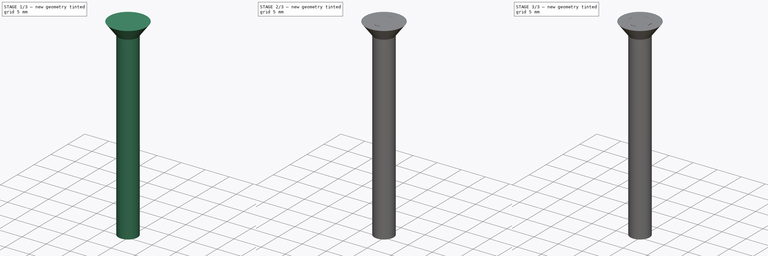
[diagram: build sequence overview — one tinted view per stage of 3, left to right]
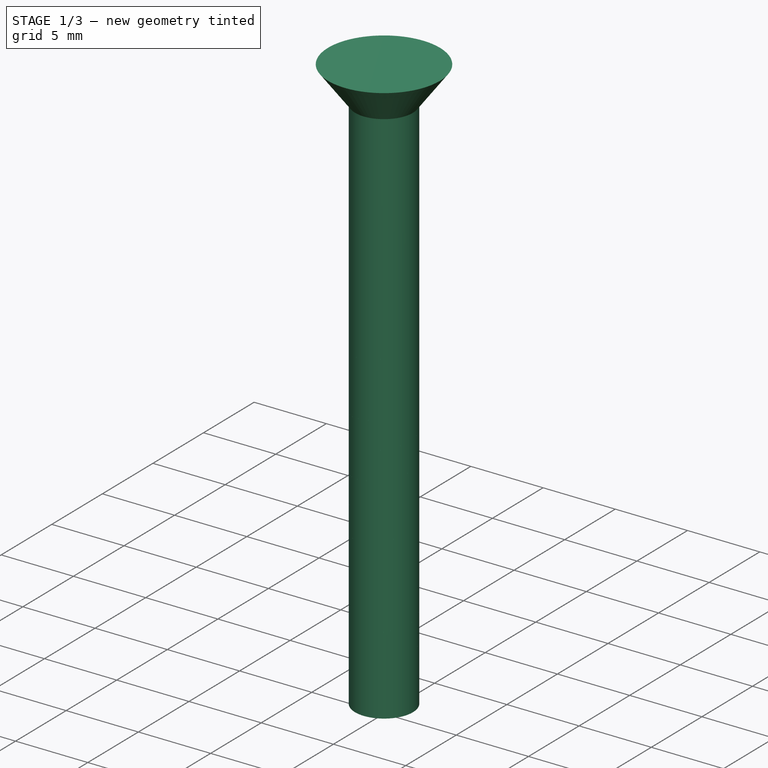
[diagram: stage 1 of 3 — iso view after this stage's code; geometry added in this stage tinted green]
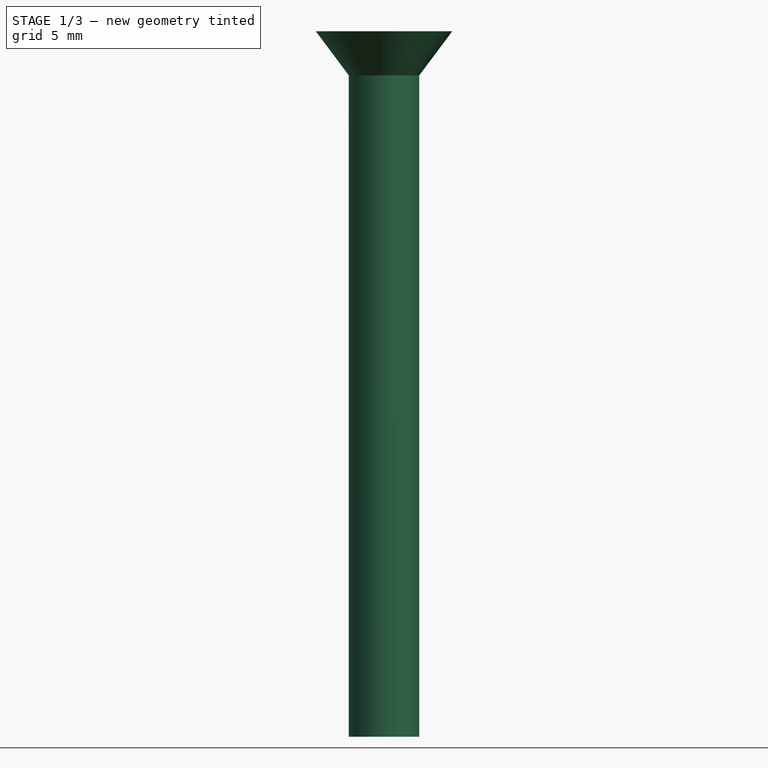
[diagram: stage 1 of 3 — front view after this stage's code; geometry added in this stage tinted green]
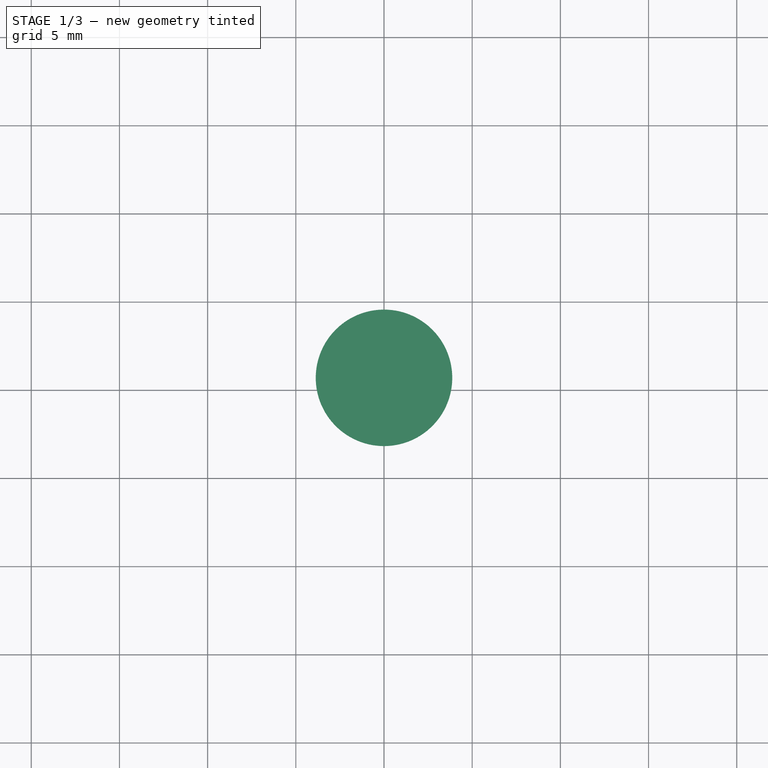
[diagram: stage 1 of 3 — top view after this stage's code; geometry added in this stage tinted green]
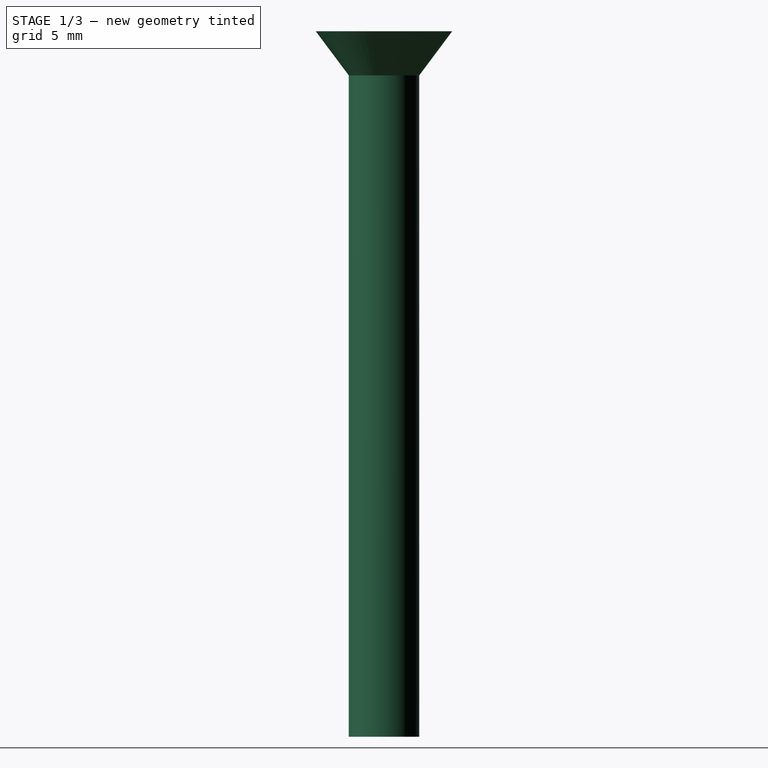
[diagram: stage 1 of 3 — right view after this stage's code; geometry added in this stage tinted green]
FCSTD DOCUMENT  (FreeCAD 1.1R20260325 (Git shallow))
Label: Screw_4_x_40_mm
License: All rights reserved
LicenseURL: http://en.wikipedia.org/wiki/All_rights_reserved
objects: Sketcher::SketchObject×5, PartDesign::AdditiveHelix×2, PartDesign::Pocket×2, App::LinkGroup×2, Spreadsheet::Sheet×1, PartDesign::Revolution×1, PartDesign::PolarPattern×1, PartDesign::SubtractiveHelix×1, PartDesign::Body×1, Part::Cylinder×1, App::Point×1
note: 32 computed .brp shape members not serialized (recipe doc carries the construction recipe); baked Part::Feature solids carry a one-line shape summary decoded from their .brp

FEATURE [Spreadsheet::Sheet] Spreadsheet  label="settings"
  cells = A1='Settings (set here):; A2='Screw diameter; B2(sdia)=4; A3='Screw height; B3(sheight)=40; A4='Head diameter; B4(hdia)=7.74; A5='No thread height; B5(threadfree)=9; A6='Bit size; B6(bitsize)=4.26; A7='Adjust if needed:; A8='Thread jump; B8(tjump)=1.9; A9='Head height 1; B9(hheight1)=0.5; A10='Head height 2; B10(hheight2)=2.5; A11='Bit pocket thickness; B11(bitthick)=1; A12='Calculated (not change):; A13='Screw radius; B13(sr)==sdia / 2; A14='Head radius; B14(hr)==hdia / 2; A15='Screw core diameter; B15(coredia)==sdia - 1; A16='Screw core radius; B16(corer)==coredia / 2; A17='Spike size; B17(spikesize)==tjump * 2; A18='Thread core height (no spike, no head); B18(tcoreheight)==sheight - spikesize - hheight1 - hheight2; A19='Thread height; B19(theight)==tcoreheight - threadfree
FEATURE [Sketcher::SketchObject] Sketch  label="Core, Pattern"
  ArcFitTolerance = 0
  AttachmentSupport = -> [XZ_Plane]
  ExternalTypes = [0]
  FullyConstrained = true
  MakeInternals = false
  MapMode = 5
  Placement = pos=(0,0,0) rot=(1,0,0;1.5708rad)
  _ExternalGeoVersion = 0
  expr: Constraints[10] = Spreadsheet.corer
  expr: Constraints[11] = 2 * Spreadsheet.tjump
  expr: Constraints[12] = Spreadsheet.sheight
  expr: Constraints[13] = Spreadsheet.hheight1
  expr: Constraints[14] = Spreadsheet.hheight2
  expr: Constraints[15] = Spreadsheet.hr
  expr: Constraints[16] = Spreadsheet.hheight1
  sketch-geometry (6):
    g0: LineSegment StartX=0 StartY=0 StartZ=0 EndX=1.5 EndY=3.8 EndZ=0
    g1: LineSegment StartX=1.5 StartY=3.8 StartZ=0 EndX=1.5 EndY=37 EndZ=0
    g2: LineSegment StartX=1.5 StartY=37 StartZ=0 EndX=2 EndY=37.5 EndZ=0
    g3: LineSegment StartX=2 StartY=37.5 StartZ=0 EndX=3.87 EndY=40 EndZ=0
    g4: LineSegment StartX=3.87 StartY=40 StartZ=0 EndX=0 EndY=40 EndZ=0
    g5: LineSegment StartX=0 StartY=40 StartZ=0 EndX=0 EndY=0 EndZ=0
  constraints (17):
    c: Coincident(g-1,g0)
    c: Coincident(g0,g1)
    c: Vertical(g1)
    c: Coincident(g1,g2)
    c: Coincident(g2,g3)
    c: Coincident(g3,g4)
    c: PointOnObject(g4,g-2)
    c: Horizontal(g4)
    c: Coincident(g4,g5)
    c: Coincident(g5,g0)
    c: DistanceX(g0,g0) = 1.5
    c: DistanceY(g0,g0) = 3.8
    c: DistanceY(g5,g5) = 40
    c: DistanceY(g1,g2) = 0.5
    c: DistanceY(g2,g3) = 2.5
    c: DistanceX(g4,g3) = 3.87
    c: DistanceX(g1,g2) = 0.5
FEATURE [PartDesign::Revolution] Revolution  label="Core"
  Angle = 360
  Angle2 = 0
  Axis = (0,2e-16,1)
  Base = (0,0,0)
  FuseOrder = 0
  Placement = pos=(0,0,0) rot=(1,0,0;1.5708rad)
  Profile = -> Sketch
  ReferenceAxis = -> Sketch [V_Axis]
  Reversed = true
  Suppressed = false
  Type = 0
FEATURE [Sketcher::SketchObject] Sketch001  label="Thread, Pattern"
  ArcFitTolerance = 0
  AttachmentSupport = -> [XZ_Plane]
  ExternalTypes = [0]
  FullyConstrained = true
  MakeInternals = false
  MapMode = 5
  Placement = pos=(0,0,0) rot=(1,0,0;1.5708rad)
  _ExternalGeoVersion = 0
  expr: Constraints[2] = Spreadsheet.spikesize
  expr: Constraints[3] = Spreadsheet.corer
  sketch-geometry (3):
    g0: LineSegment StartX=1.5 StartY=3.675 StartZ=0 EndX=2 EndY=3.8 EndZ=0
    g1: LineSegment StartX=2 StartY=3.8 StartZ=0 EndX=1.5 EndY=3.925 EndZ=0
    g2: LineSegment StartX=1.5 StartY=3.925 StartZ=0 EndX=1.5 EndY=3.675 EndZ=0
  constraints (9):
    c: Coincident(g0,g1)
    c: Equal(g0,g1)
    c: DistanceY(g-1,g0) = 3.8
    c: DistanceX(g-1,g0) = 1.5
    c: DistanceX(g0,g0) = 0.5
    c: DistanceY(g0,g1) = 0.25
    c: Vertical(g1,g0)
    c: Coincident(g2,g1)
    c: Coincident(g2,g0)
FEATURE [PartDesign::AdditiveHelix] AdditiveHelix  label="Thread, Core"
  Angle = 0
  Axis = (0,2e-16,1)
  Base = (0,0,0)
  BaseFeature = -> Revolution
  Growth = 0
  HasBeenEdited = true
  Height = 20.4
  LeftHanded = false
  Mode = 0
  Outside = false
  Pitch = 1.9
  Placement = pos=(0,0,0) rot=(1,0,0;1.5708rad)
  Profile = -> Sketch001
  ReferenceAxis = -> Sketch001 [V_Axis]
  Suppressed = false
  Tolerance = 0.1
  Turns = 10.7368
  expr: Height = Spreadsheet.theight - Spreadsheet.spikesize
  expr: Pitch = Spreadsheet.tjump
FEATURE [PartDesign::Body] Body  label="Screw, Body"
  AllowCompound = true
  Group = -> [Sketch,Revolution,Sketch001,AdditiveHelix,AdditiveHelix001,Sketch002,Pocket,Sketch003,Pocket001,PolarPattern,Sketch004,SubtractiveHelix]
  Origin = -> Origin
  Tip = -> SubtractiveHelix
FEATURE [Part::Cylinder] Cylinder  label="Screw, Size, Pattern"
  Angle = 360
  AttacherType = Attacher::AttachEngine3D
  FirstAngle = 0
  Height = 40
  Radius = 2
  SecondAngle = 0
  expr: Height = Spreadsheet.sheight
  expr: Radius = Spreadsheet.sr
FEATURE [App::LinkGroup] LinkGroup  label="Screw 4 x 40 mm, link this"
  ElementList = -> [Body,Cylinder]
  LinkMode = 0
FEATURE [App::LinkGroup] LinkGroup001  label="Screw 4 x 40 mm, hide this"
  ElementList = -> [LinkGroup,Spreadsheet]
  LinkMode = 0
FEATURE [App::Point] Origin001  label="Origin"
  Role = Origin
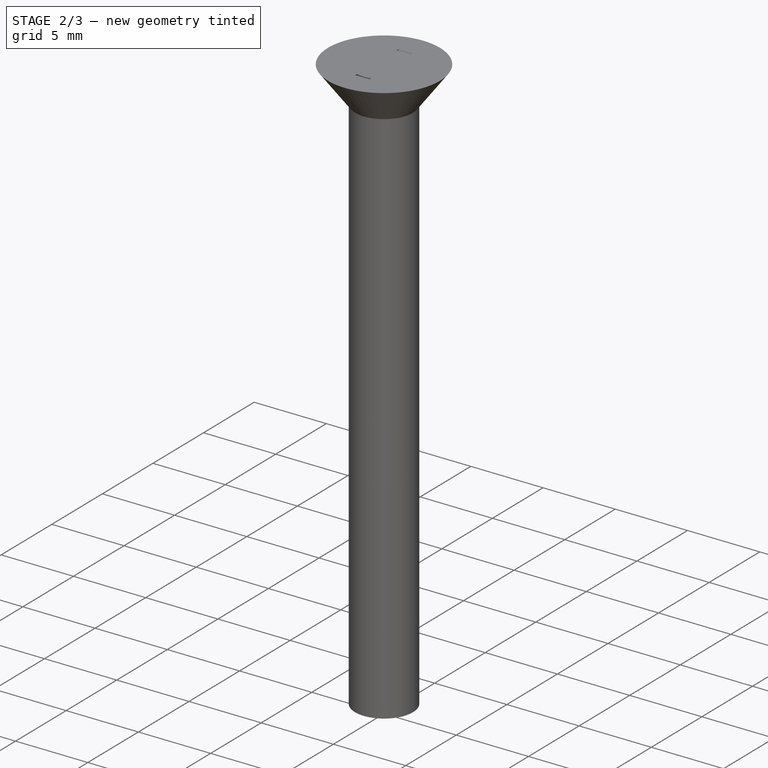
[diagram: stage 2 of 3 — iso view after this stage's code; geometry added in this stage tinted green]
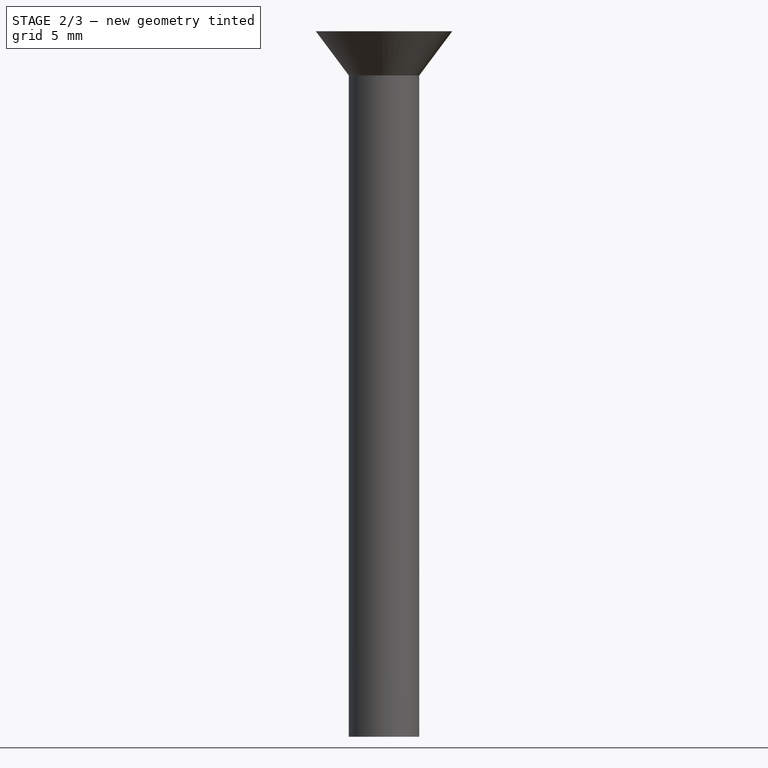
[diagram: stage 2 of 3 — front view after this stage's code; geometry added in this stage tinted green]
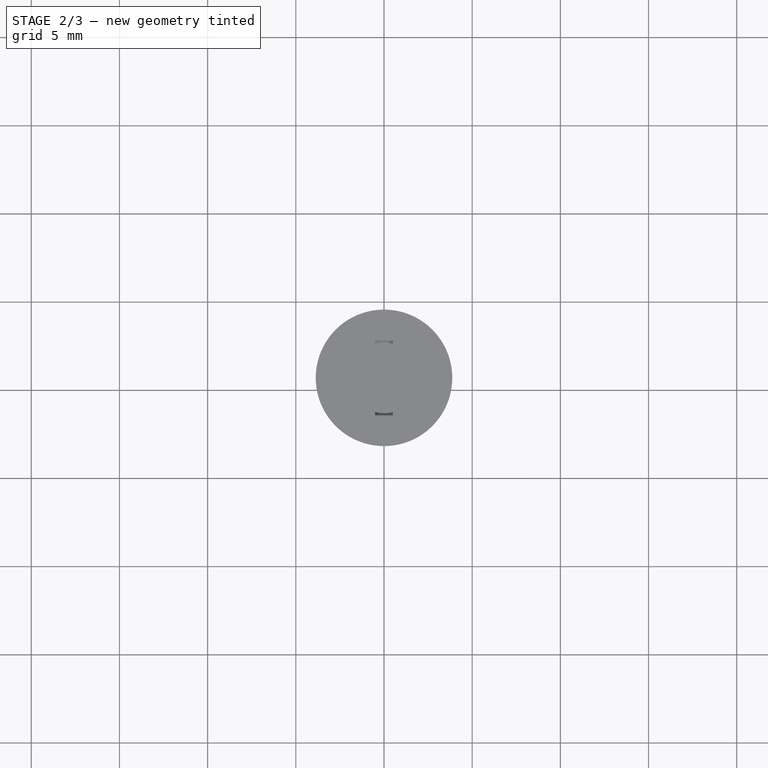
[diagram: stage 2 of 3 — top view after this stage's code; geometry added in this stage tinted green]
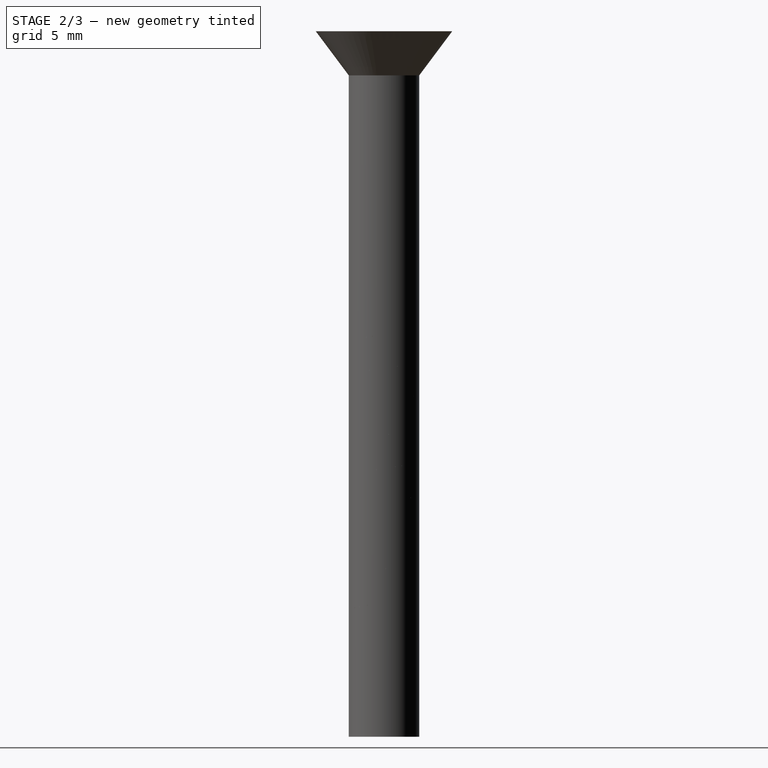
[diagram: stage 2 of 3 — right view after this stage's code; geometry added in this stage tinted green]
FEATURE [PartDesign::AdditiveHelix] AdditiveHelix001  label="Thread, Spike"
  Angle = -30
  Axis = (0,2e-16,1)
  Base = (0,0,0)
  BaseFeature = -> AdditiveHelix
  Growth = -1.09697
  HasBeenEdited = true
  Height = 2.53333
  LeftHanded = false
  Mode = 0
  Outside = false
  Pitch = 1.9
  Placement = pos=(0,0,0) rot=(1,0,0;1.5708rad)
  Profile = -> Sketch001
  ReferenceAxis = -> Sketch001 [V_Axis]
  Reversed = true
  Suppressed = false
  Tolerance = 0.1
  Turns = 1.33333
  expr: Height = 2 * Spreadsheet.spikesize / 3
  expr: Pitch = Spreadsheet.tjump
FEATURE [Sketcher::SketchObject] Sketch002  label="Bit, Pattern 1"
  ArcFitTolerance = 0
  AttachmentSupport = -> [YZ_Plane]
  ExternalTypes = [0]
  FullyConstrained = true
  MakeInternals = false
  MapMode = 5
  Placement = pos=(0,0,0) rot=(0.57735,0.57735,0.57735;2.0944rad)
  _ExternalGeoVersion = 0
  expr: Constraints[16] = Spreadsheet.hheight2 / 4
  expr: Constraints[6] = Spreadsheet.coredia
  expr: Constraints[7] = Spreadsheet.sheight
  expr: Constraints[8] = Spreadsheet.bitsize
  expr: Constraints[9] = Spreadsheet.hheight2 / 2
  sketch-geometry (6):
    g0: LineSegment StartX=-2.13 StartY=40 StartZ=0 EndX=2.13 EndY=40 EndZ=0
    g1: LineSegment StartX=2.13 StartY=40 StartZ=0 EndX=1.5 EndY=38.75 EndZ=0
    g2: LineSegment StartX=1.5 StartY=38.75 StartZ=0 EndX=0.875 EndY=38.75 EndZ=0
    g3: LineSegment StartX=-1.5 StartY=38.75 StartZ=0 EndX=-2.13 EndY=40 EndZ=0
    g4: ArcOfCircle CenterX=0 CenterY=40 CenterZ=0 NormalX=0 NormalY=0 NormalZ=1 AngleXU=0 Radius=1.52582 StartAngle=4.10166 EndAngle=5.32311
    g5: LineSegment StartX=-0.875 StartY=38.75 StartZ=0 EndX=-1.5 EndY=38.75 EndZ=0
  constraints (17):
    c: Coincident(g0,g1)
    c: Coincident(g1,g2)
    c: Coincident(g5,g3)
    c: Coincident(g3,g0)
    c: Symmetric(g1,g5,g-2)
    c: Symmetric(g0,g0,g-2)
    c: DistanceX(g5,g2) = 3
    c: DistanceY(g-1,g0) = 40
    c: DistanceX(g0,g0) = 4.26
    c: DistanceY(g1,g0) = 1.25
    c: Horizontal(g4,g0)
    c: PointOnObject(g4,g-2)
    c: Coincident(g2,g4)
    c: Coincident(g5,g4)
    c: Horizontal(g3,g4)
    c: Horizontal(g4,g2)
    c: DistanceX(g2,g1) = 0.625
FEATURE [PartDesign::Pocket] Pocket  label="Bit, Pocket 1"
  BaseFeature = -> AdditiveHelix001
  Direction = (-1,0,0)
  Length = 1
  Length2 = 5
  Placement = pos=(0,0,0) rot=(1,0,0;1.5708rad)
  Profile = -> Sketch002
  ReferenceAxis = -> Sketch002 [N_Axis]
  SideType = 2
  Suppressed = false
  Type = 0
  Type2 = 0
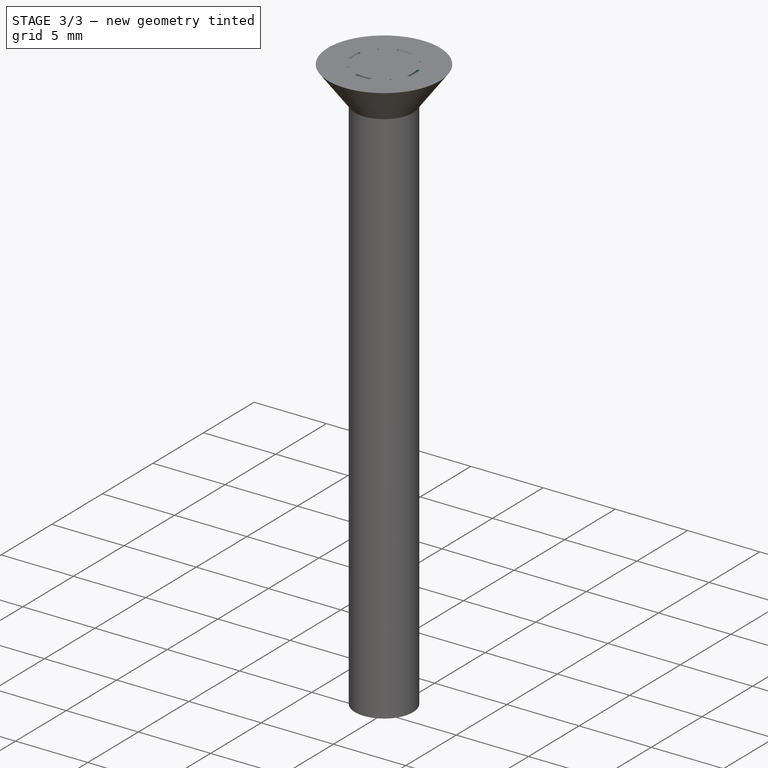
[diagram: stage 3 of 3 — iso view after this stage's code; geometry added in this stage tinted green]
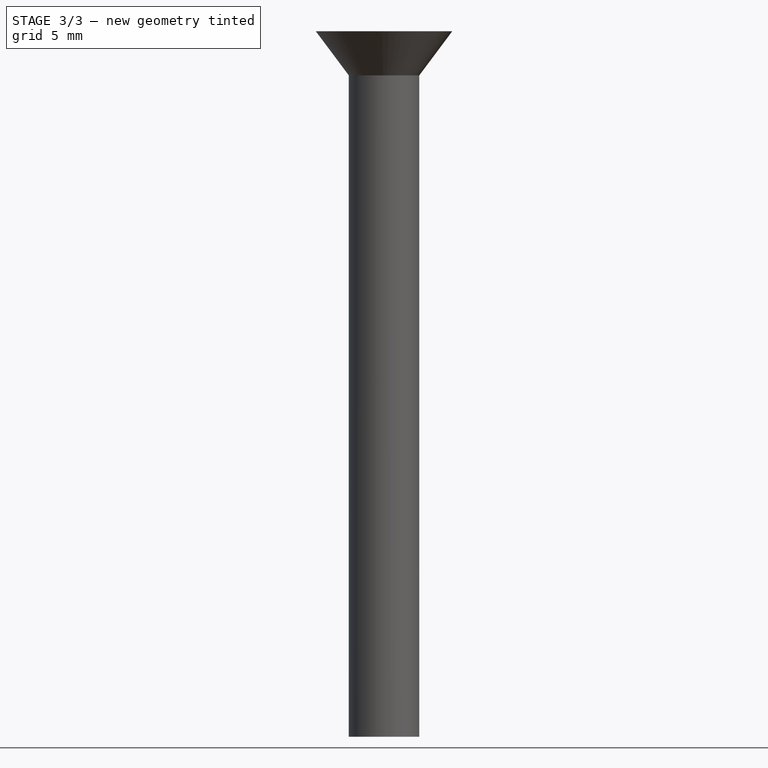
[diagram: stage 3 of 3 — front view after this stage's code; geometry added in this stage tinted green]
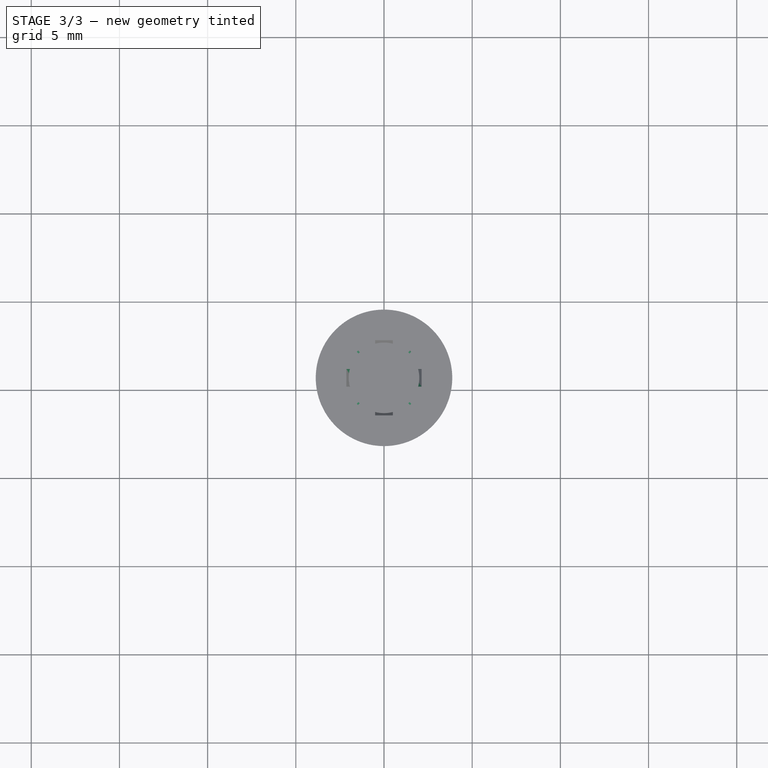
[diagram: stage 3 of 3 — top view after this stage's code; geometry added in this stage tinted green]
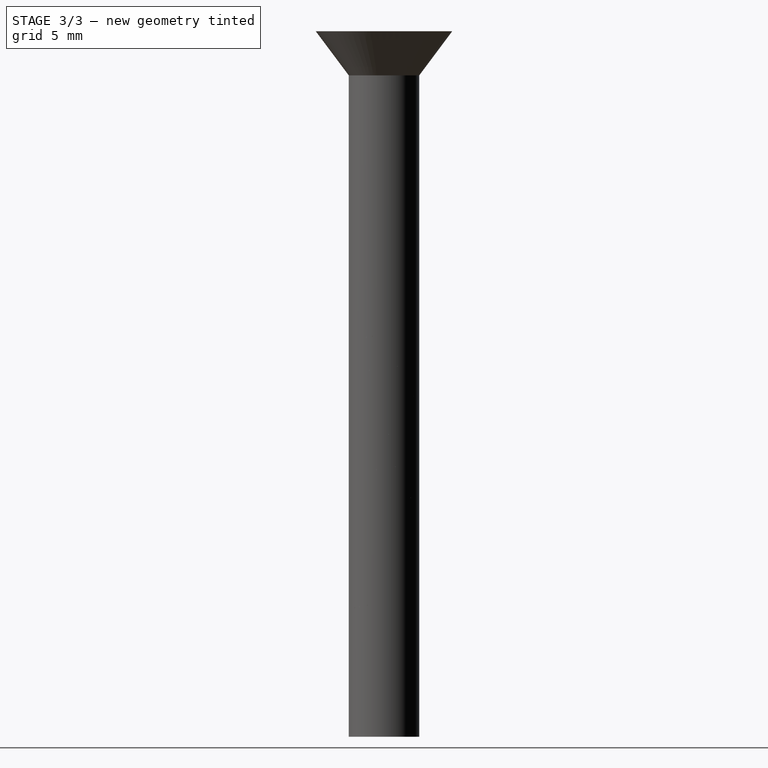
[diagram: stage 3 of 3 — right view after this stage's code; geometry added in this stage tinted green]
FEATURE [Sketcher::SketchObject] Sketch003  label="Bit, Line, Pattern 1"
  ArcFitTolerance = 0
  AttachmentOffset = pos=(0,0,0) rot=(0,1,0;0.785398rad)
  AttachmentSupport = -> [YZ_Plane]
  ExternalTypes = [0]
  FullyConstrained = true
  MakeInternals = false
  MapMode = 5
  Placement = pos=(0,0,0) rot=(0.281085,0.678598,0.678598;2.59356rad)
  _ExternalGeoVersion = 0
  expr: Constraints[10] = Spreadsheet.sheight
  expr: Constraints[6] = Spreadsheet.bitsize
  sketch-geometry (4):
    g0: LineSegment StartX=2.13 StartY=40 StartZ=0 EndX=2.13 EndY=39.9 EndZ=0
    g1: LineSegment StartX=2.13 StartY=39.9 StartZ=0 EndX=-2.13 EndY=39.9 EndZ=0
    g2: LineSegment StartX=-2.13 StartY=39.9 StartZ=0 EndX=-2.13 EndY=40 EndZ=0
    g3: LineSegment StartX=-2.13 StartY=40 StartZ=0 EndX=2.13 EndY=40 EndZ=0
  constraints (11):
    c: Coincident(g0,g1)
    c: Coincident(g1,g2)
    c: Coincident(g3,g2)
    c: Coincident(g3,g0)
    c: Equal(g1,g3)
    c: Equal(g0,g2)
    c: DistanceX(g3,g3) = 4.26
    c: Vertical(g2)
    c: Symmetric(g1,g0,g-2)
    c: DistanceY(g0,g0) = 0.1
    c: DistanceY(g-1,g0) = 40
FEATURE [PartDesign::Pocket] Pocket001  label="Bit, Lines 1"
  BaseFeature = -> Pocket
  Direction = (-0.707107,-0.707107,0)
  Length = 0.1
  Length2 = 5
  Placement = pos=(0,0,0) rot=(1,0,0;1.5708rad)
  Profile = -> Sketch003
  ReferenceAxis = -> Sketch003 [N_Axis]
  SideType = 2
  Suppressed = false
  Type = 0
  Type2 = 0
FEATURE [PartDesign::PolarPattern] PolarPattern  label="Bit, PolarPattern"
  Angle = 90
  Axis = -> Sketch003 [V_Axis]
  BaseFeature = -> Pocket001
  Mode = 0
  Occurrences = 2
  Offset = 120
  Originals = -> [Pocket001,Pocket]
  Placement = pos=(0,0,0) rot=(1,0,0;1.5708rad)
  SpacingPattern = [0]
  Spacings = [-1]
  Suppressed = false
  TransformMode = 0
FEATURE [Sketcher::SketchObject] Sketch004  label="Thread, Top, Pattern"
  ArcFitTolerance = 0
  AttachmentSupport = -> [XZ_Plane]
  ExternalTypes = [0]
  FullyConstrained = true
  MakeInternals = false
  MapMode = 5
  Placement = pos=(0,0,0) rot=(1,0,0;1.5708rad)
  _ExternalGeoVersion = 0
  expr: Constraints[2] = Spreadsheet.tjump
  expr: Constraints[4] = Spreadsheet.corer
  expr: Constraints[5] = Spreadsheet.theight
  sketch-geometry (4):
    g0: LineSegment StartX=1.5 StartY=26.1 StartZ=0 EndX=1.5 EndY=24.2 EndZ=0
    g1: LineSegment StartX=1.5 StartY=24.2 StartZ=0 EndX=2.5 EndY=24.2 EndZ=0
    g2: LineSegment StartX=1.5 StartY=26.1 StartZ=0 EndX=2.5 EndY=26.1 EndZ=0
    g3: LineSegment StartX=2.5 StartY=26.1 StartZ=0 EndX=2.5 EndY=24.2 EndZ=0
  constraints (12):
    c: Vertical(g0)
    c: Coincident(g0,g1)
    c: DistanceY(g0,g0) = 1.9
    c: DistanceX(g0,g1) = 1
    c: DistanceX(g-1,g0) = 1.5
    c: DistanceY(g-1,g1) = 24.2
    c: Coincident(g0,g2)
    c: Coincident(g2,g3)
    c: Coincident(g3,g1)
    c: Horizontal(g2)
    c: Vertical(g3)
    c: Horizontal(g1)
FEATURE [PartDesign::SubtractiveHelix] SubtractiveHelix  label="Thread, Top"
  Angle = 15
  Axis = (0,2e-16,1)
  Base = (0,0,0)
  BaseFeature = -> PolarPattern
  Growth = 0.509103
  HasBeenEdited = true
  Height = 1.9
  LeftHanded = false
  Mode = 0
  Outside = false
  Pitch = 1.9
  Placement = pos=(0,0,0) rot=(1,0,0;1.5708rad)
  Profile = -> Sketch004
  ReferenceAxis = -> Sketch004 [V_Axis]
  Reversed = true
  Suppressed = false
  Tolerance = 0.1
  Turns = 1
  expr: Height = Spreadsheet.tjump
  expr: Pitch = Spreadsheet.tjump
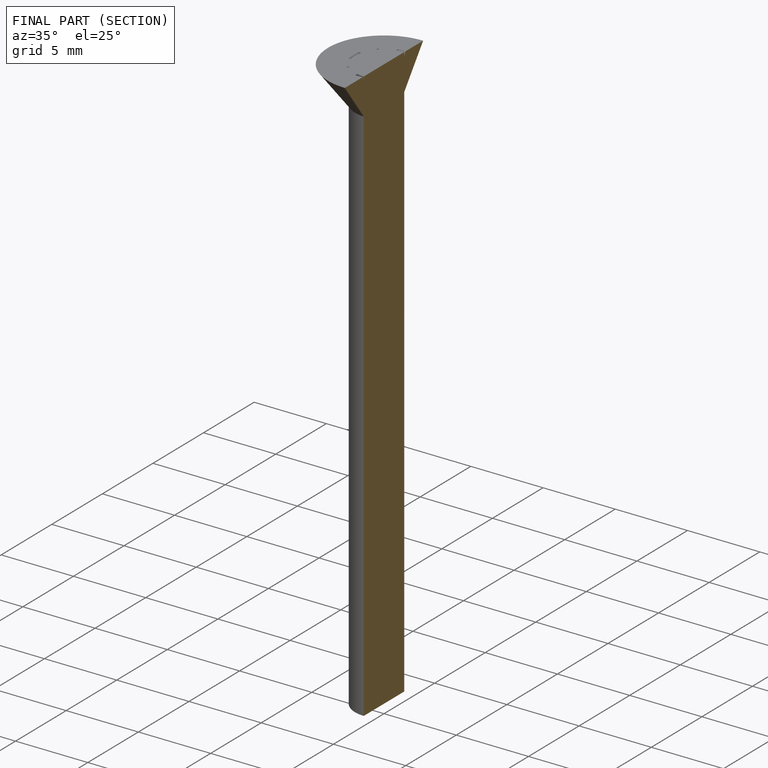
[diagram: finished part — half-section view (interior)]
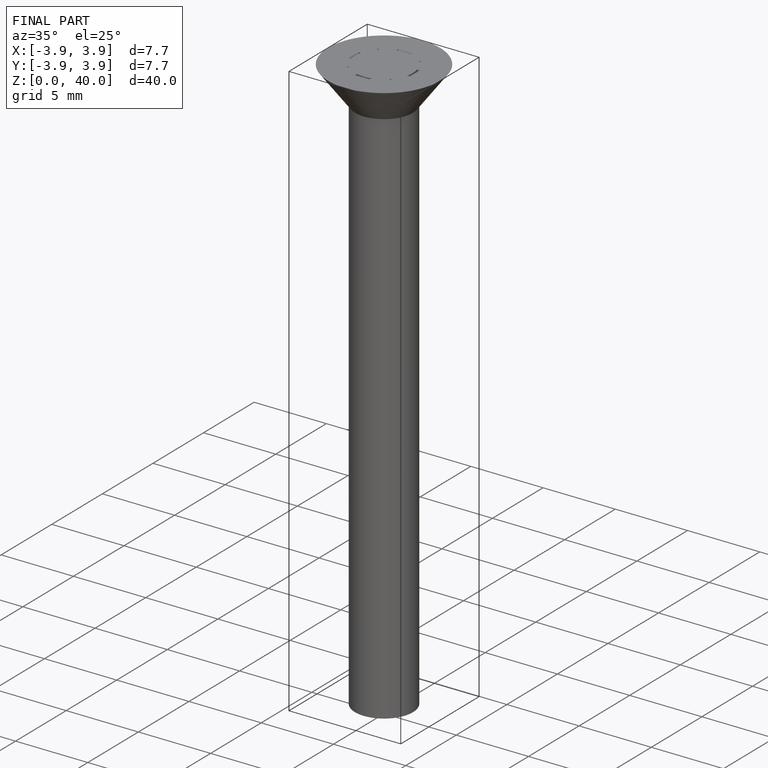
[diagram: finished part — iso view with bounding-box wireframe]
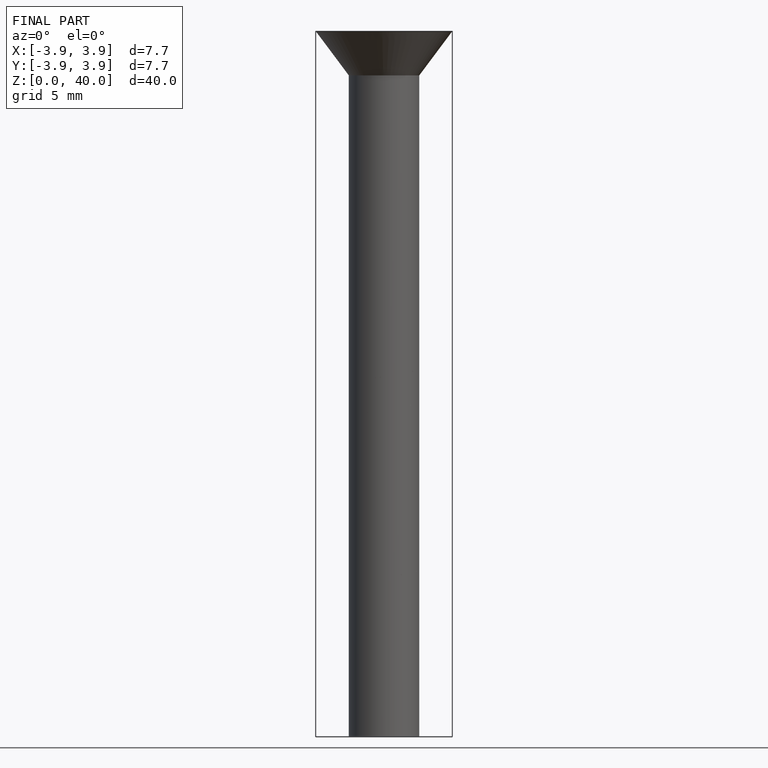
[diagram: finished part — front view with bounding-box wireframe]
